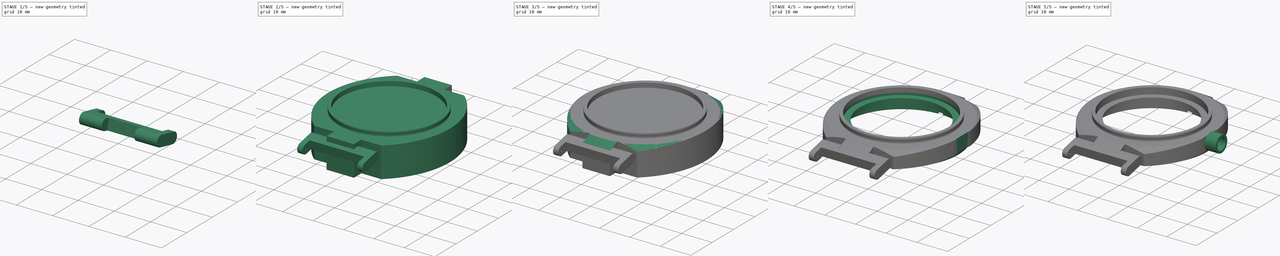
[diagram: build sequence overview — one tinted view per stage of 5, left to right]
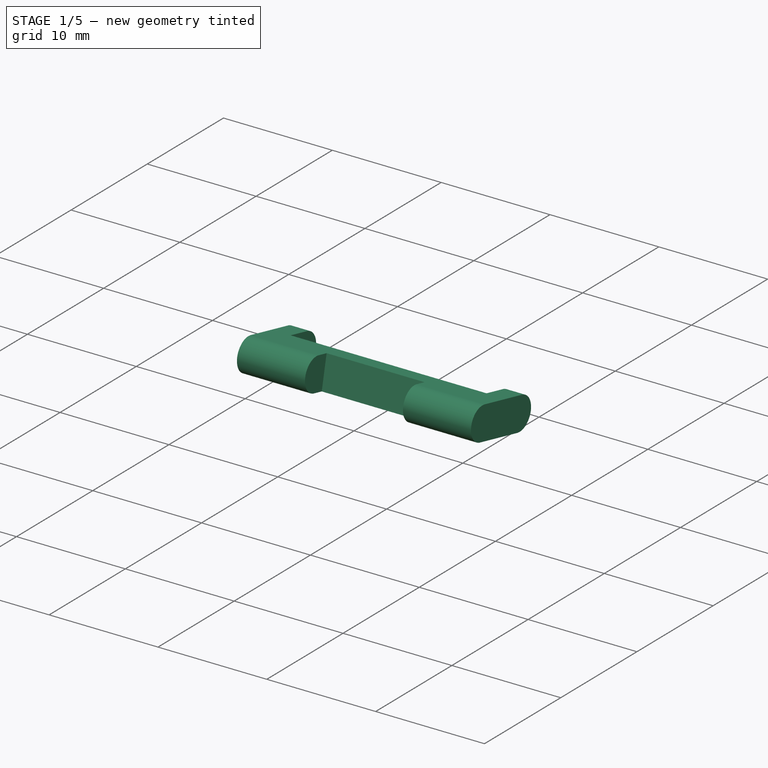
[diagram: stage 1 of 5 — iso view after this stage's code; geometry added in this stage tinted green]
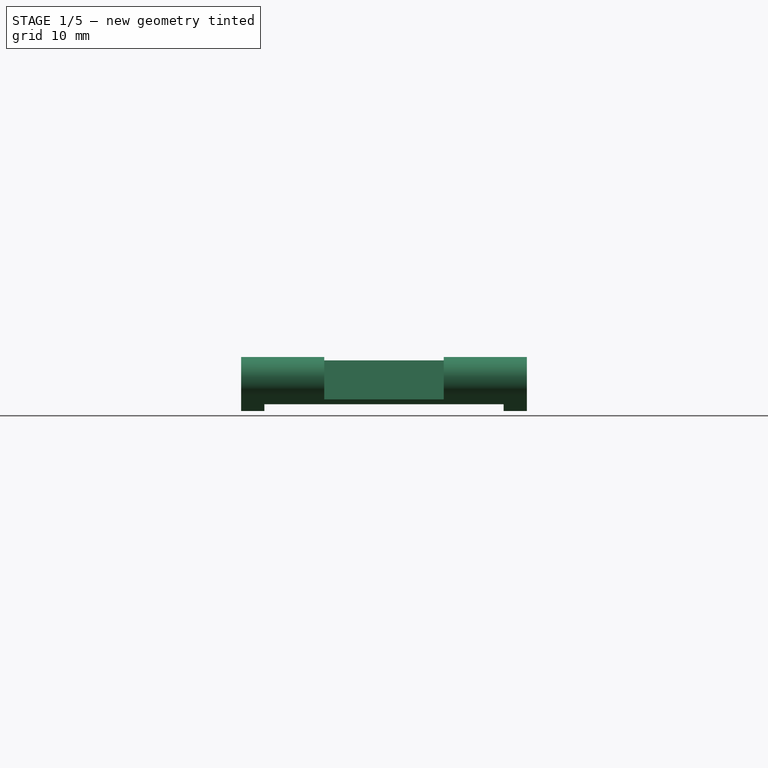
[diagram: stage 1 of 5 — front view after this stage's code; geometry added in this stage tinted green]
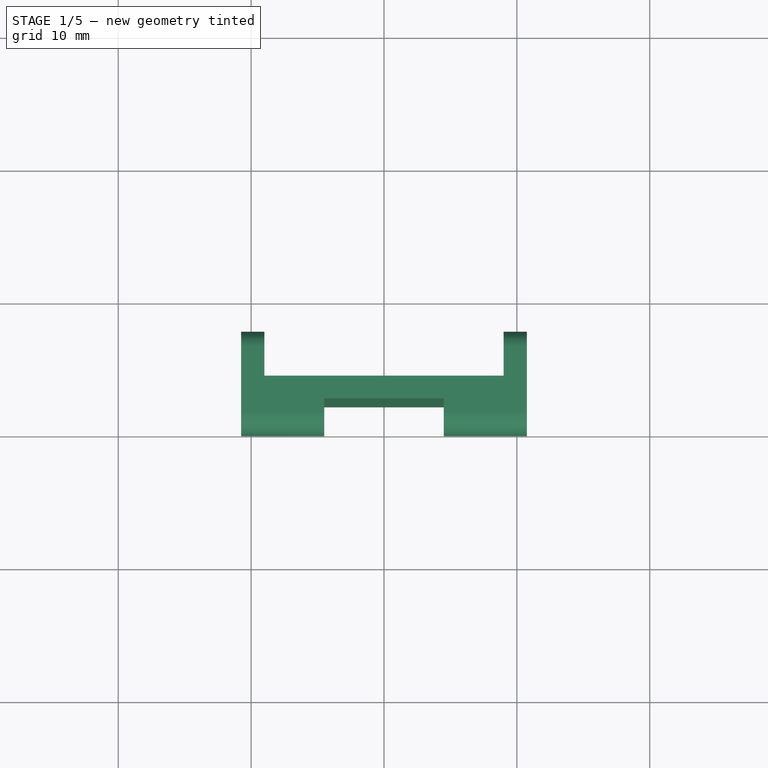
[diagram: stage 1 of 5 — top view after this stage's code; geometry added in this stage tinted green]
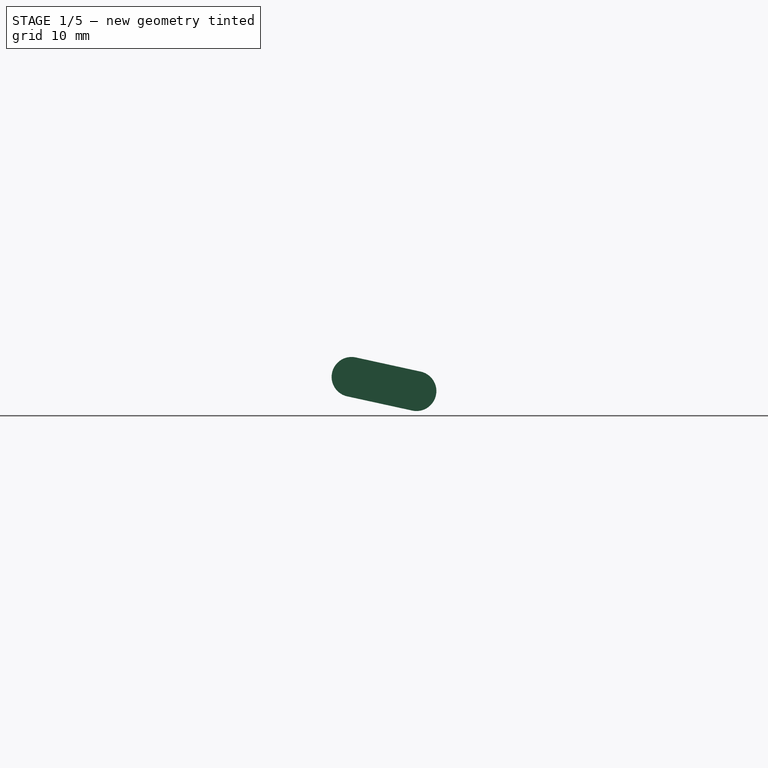
[diagram: stage 1 of 5 — right view after this stage's code; geometry added in this stage tinted green]
FCSTD DOCUMENT  (FreeCAD 0.19R20415 (Git))
Label: Vostok_Amphibia_Case_960
License: All rights reserved
LicenseURL: http://en.wikipedia.org/wiki/All_rights_reserved
objects: Sketcher::SketchObject×16, PartDesign::Pocket×6, PartDesign::Plane×3, PartDesign::Pad×3, PartDesign::Groove×2, Image::ImagePlane×2, PartDesign::Body×2, PartDesign::Point×1, PartDesign::Revolution×1, PartDesign::SubtractivePipe×1, PartDesign::Mirrored×1, Part::FeaturePython×1
note: 50 computed .brp shape members not serialized (recipe doc carries the construction recipe); baked Part::Feature solids carry a one-line shape summary decoded from their .brp

FEATURE [PartDesign::Body] Body  label="960_Case"
  Group = -> [Sketch,Pad,Sketch001,Revolution,DatumPlane,DatumPlane001,DatumPoint,Sketch003,Sketch005,Sketch009,Sketch011,Sketch013,Sketch014,Sketch020,Sketch021,SubtractivePipe,Mirrored,Pocket,Groove,Pocket001,DatumPlane002,Sketch028,Sketch029,Sketch032,Pocket002,Pad001,Groove001,Pocket003]
  Origin = -> Origin
  Tip = -> Pocket003
FEATURE [Image::ImagePlane] ImagePlane001
  Placement = pos=(6.7e-15,27,0) rot=(0,0,1;3.14159rad)
  XSize = 32.1963
  YSize = 32.1963
FEATURE [Sketcher::SketchObject] Sketch033
  MapMode = 5
  Placement = pos=(0,0,0) rot=(0.57735,0.57735,0.57735;2.0944rad)
  Support = -> [YZ_Plane001]
  sketch-geometry (7):
    g0: LineSegment StartX=21.8203 StartY=8.71541 StartZ=0 EndX=26.705 EndY=7.6478 EndZ=0
    g1: LineSegment StartX=26.0644 StartY=4.71698 StartZ=0 EndX=21.1797 EndY=5.78459 EndZ=0
    g2: ArcOfCircle CenterX=21.5 CenterY=7.25 CenterZ=0 NormalX=0 NormalY=0 NormalZ=1 AngleXU=0 Radius=1.5 StartAngle=1.35562 EndAngle=4.49721
    g3: ArcOfCircle CenterX=26.3847 CenterY=6.18239 CenterZ=0 NormalX=0 NormalY=0 NormalZ=1 AngleXU=0 Radius=1.5 StartAngle=4.49721 EndAngle=7.6388
    g4: GeomPoint X=20.0346 Y=7.57028 Z=0
    g5: GeomPoint X=27.8501 Y=5.86211 Z=0
    g6: LineSegment [constr] StartX=20.0346 StartY=7.57028 StartZ=0 EndX=27.8501 EndY=5.86211 EndZ=0
  constraints (17):
    c: Symmetric(g1,g0,g2)
    c: Symmetric(g1,g0,g3)
    c: Tangent(g3,g0) = 1.5708
    c: Tangent(g2,g0) = 1.5708
    c: Equal(g3,g2)
    c: Coincident(g2,g1)
    c: Coincident(g3,g1)
    c: Distance(g0,g1) = 3
    c: DistanceX(g2) = 21.5
    c: DistanceY(g2) = 7.25
    c: PointOnObject(g4,g2)
    c: PointOnObject(g5,g3)
    c: Coincident(g6,g4)
    c: Coincident(g6,g5)
    c: PointOnObject(g3,g6)
    c: PointOnObject(g2,g6)
    c: Distance(g6) = 8
FEATURE [PartDesign::Pad] Pad002
  Length = 21.5
  Length2 = 100
  Midplane = true
  Placement = pos=(0,0,0) rot=(0.57735,0.57735,0.57735;2.0944rad)
  Profile = -> Sketch033
  Type = 0
FEATURE [Sketcher::SketchObject] Sketch034
  MapMode = 5
  Placement = pos=(-3.8e-15,2.81284,12.8697) rot=(-0.106768,-0.106768,-0.988535;1.58233rad)
  Support = -> [Pad002]
  sketch-geometry (8):
    g0: LineSegment StartX=-20.5 StartY=4.5 StartZ=0 EndX=0 EndY=4.5 EndZ=0
    g1: LineSegment StartX=0 StartY=4.5 StartZ=0 EndX=0 EndY=-4.5 EndZ=0
    g2: LineSegment StartX=0 StartY=-4.5 StartZ=0 EndX=-20.5 EndY=-4.5 EndZ=0
    g3: LineSegment StartX=-20.5 StartY=-4.5 StartZ=0 EndX=-20.5 EndY=4.5 EndZ=0
    g4: LineSegment StartX=-32.25 StartY=9 StartZ=0 EndX=-22.25 EndY=9 EndZ=0
    g5: LineSegment StartX=-22.25 StartY=9 StartZ=0 EndX=-22.25 EndY=-9 EndZ=0
    g6: LineSegment StartX=-22.25 StartY=-9 StartZ=0 EndX=-32.25 EndY=-9 EndZ=0
    g7: LineSegment StartX=-32.25 StartY=-9 StartZ=0 EndX=-32.25 EndY=9 EndZ=0
  constraints (22):
    c: Coincident(g0,g1)
    c: Coincident(g1,g2)
    c: Coincident(g2,g3)
    c: Coincident(g3,g0)
    c: Horizontal(g0)
    c: Horizontal(g2)
    c: Vertical(g1)
    c: Coincident(g4,g5)
    c: Coincident(g5,g6)
    c: Coincident(g6,g7)
    c: Coincident(g7,g4)
    c: Horizontal(g4)
    c: Horizontal(g6)
    c: Vertical(g5)
    c: Symmetric(g4,g6,g-1)
    c: DistanceY(g7,g7) = 18
    c: DistanceY(g2,g0) = 9
    c: Symmetric(g0,g2,g-1)
    c: PointOnObject(g0,g-2)
    c: DistanceX(g4,g4) = 10
    c: DistanceX(g4,g0) = 1.75
    c: DistanceX(g2) = -20.5
FEATURE [PartDesign::Pocket] Pocket004
  BaseFeature = -> Pad002
  Length = 5
  Length2 = 100
  Placement = pos=(0,0,0) rot=(0.57735,0.57735,0.57735;2.0944rad)
  Profile = -> Sketch034
  Type = 0
FEATURE [Sketcher::SketchObject] Sketch035
  ExternalGeometry = -> [Pocket004]
  MapMode = 5
  Placement = pos=(0,0,0) rot=(0.57735,0.57735,0.57735;2.0944rad)
  Support = -> [YZ_Plane001]
  sketch-geometry (1):
    g0: Circle CenterX=26.3847 CenterY=6.18239 CenterZ=0 NormalX=0 NormalY=0 NormalZ=1 AngleXU=0 Radius=0.25
  constraints (2):
    c: Radius(g0) = 0.25
    c: Coincident(g0,g-3)
FEATURE [PartDesign::Pocket] Pocket005
  BaseFeature = -> Pocket004
  Length = 18.5
  Length2 = 100
  Midplane = true
  Placement = pos=(0,0,0) rot=(0.57735,0.57735,0.57735;2.0944rad)
  Profile = -> Sketch035
  Type = 0
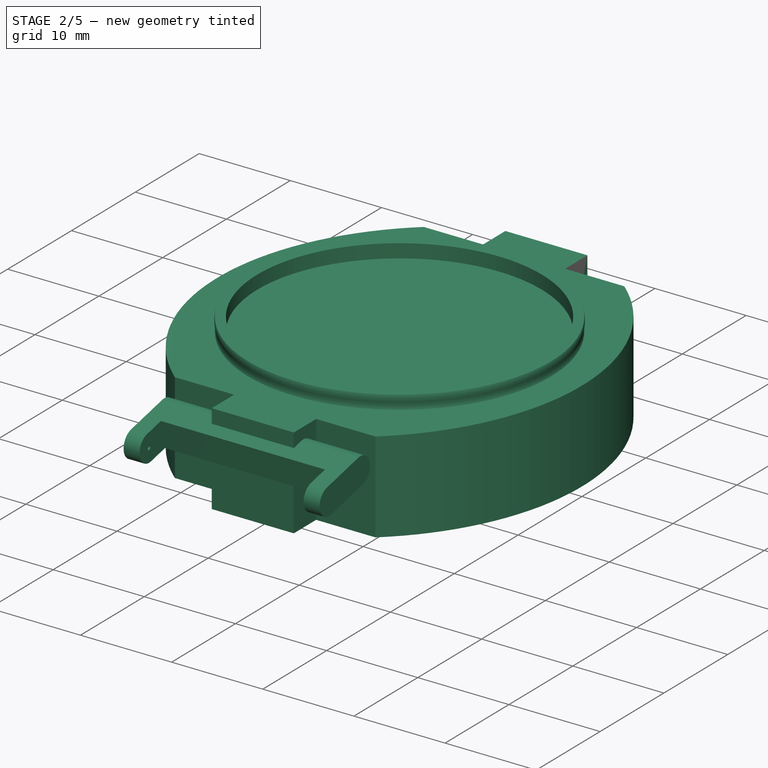
[diagram: stage 2 of 5 — iso view after this stage's code; geometry added in this stage tinted green]
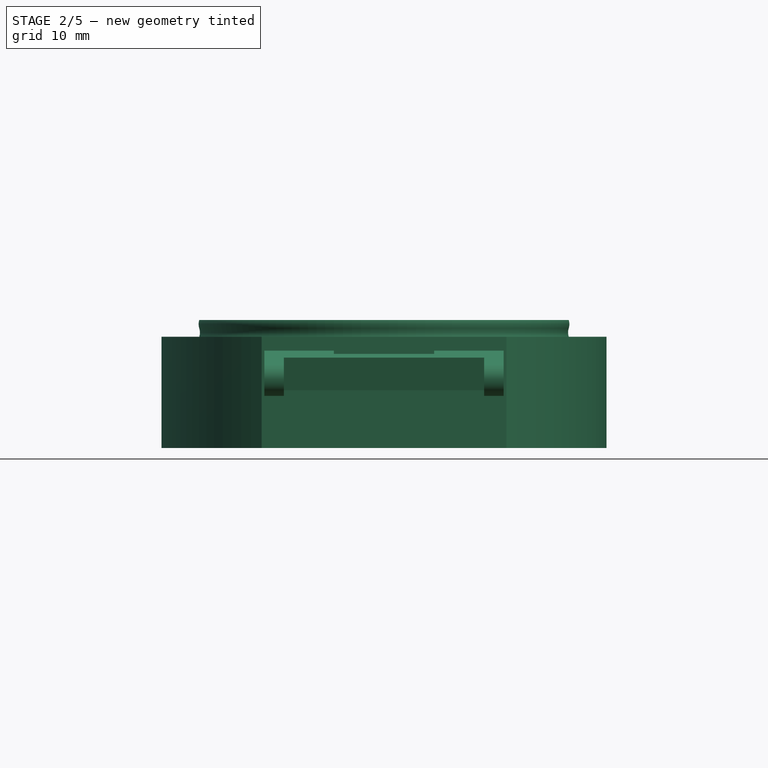
[diagram: stage 2 of 5 — front view after this stage's code; geometry added in this stage tinted green]
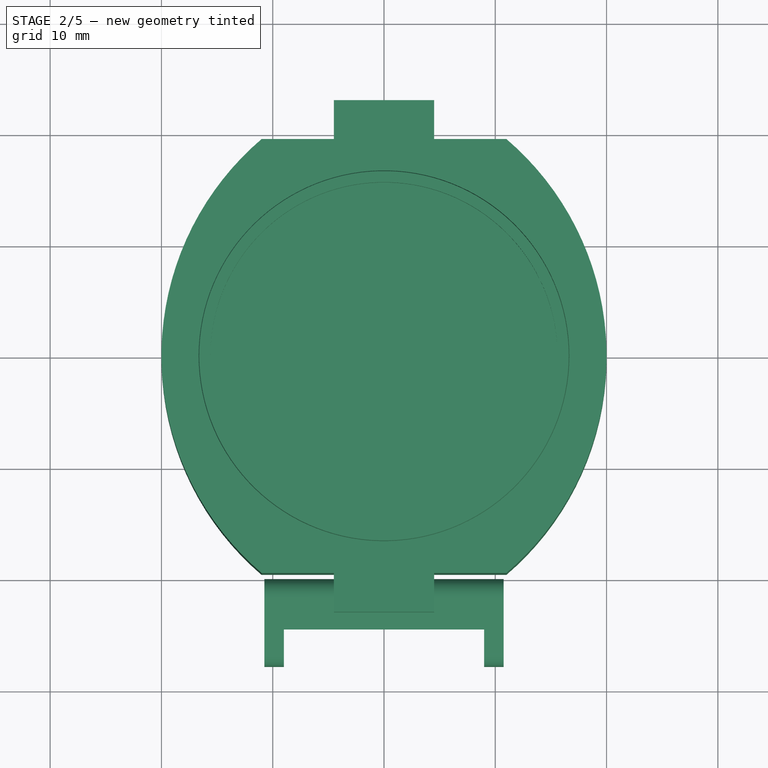
[diagram: stage 2 of 5 — top view after this stage's code; geometry added in this stage tinted green]
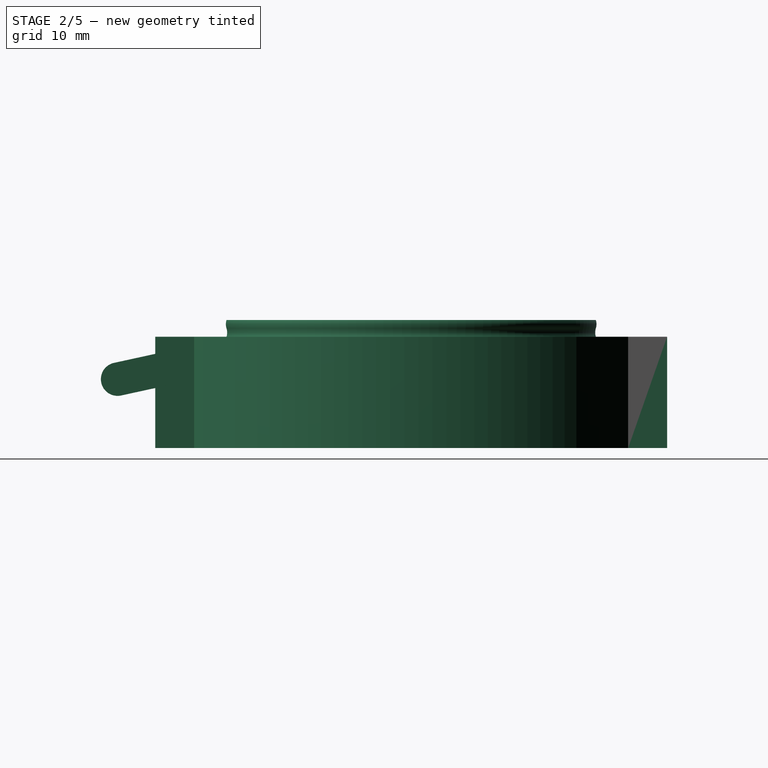
[diagram: stage 2 of 5 — right view after this stage's code; geometry added in this stage tinted green]
FEATURE [PartDesign::Point] DatumPoint
  AttacherType = Attacher::AttachEnginePoint
FEATURE [Sketcher::SketchObject] Sketch009
  MapMode = 5
  Placement = pos=(0,0,10) rot=(0,0,1;0rad)
  sketch-geometry (7):
    g0: ArcOfEllipse CenterX=0 CenterY=0 CenterZ=0 NormalX=0 NormalY=0 NormalZ=1 MajorRadius=23.015 MinorRadius=22 AngleXU=1.5708 StartAngle=0 EndAngle=3.14159
    g1: LineSegment [constr] StartX=0 StartY=23.015 StartZ=0 EndX=0 EndY=-23.015 EndZ=0
    g2: LineSegment [constr] StartX=-22 StartY=3.8e-15 StartZ=0 EndX=22 EndY=-3.8e-15 EndZ=0
    g3: GeomPoint X=-1.23e-14 Y=6.75945 Z=0
    g4: GeomPoint X=1.23e-14 Y=-6.75945 Z=0
    g5: LineSegment StartX=-10 StartY=20.5 StartZ=0 EndX=0 EndY=20.5 EndZ=0
    g6: LineSegment StartX=-7.1e-15 StartY=-20.5 StartZ=0 EndX=-10 EndY=-20.5 EndZ=0
  constraints (14):
    c: InternalAlignment(g1-g4 -> g0) x4
    c: PointOnObject(g0,g-1)
    c: Perpendicular(g-1,g1)
    c: DistanceX(g2) = -22
    c: PointOnObject(g1,g-2)
    c: PointOnObject(g0,g-2)
    c: PointOnObject(g0,g-2)
    c: PointOnObject(g5,g-2)
    c: Horizontal(g6)
    c: Symmetric(g6,g5,g-1)
    c: DistanceY(g6) = -20.5
    c: Symmetric(g5,g6,g2)
    c: DistanceX(g5) = -10
    c: PointOnObject(g6,g0)
FEATURE [PartDesign::Plane] DatumPlane
  Length = 60
  MapMode = 5
  Placement = pos=(0,0,0) rot=(0.57735,0.57735,0.57735;2.0944rad)
  ResizeMode = 0
  Support = -> [YZ_Plane]
  Width = 60
FEATURE [Sketcher::SketchObject] Sketch003
  MapMode = 5
  Placement = pos=(0,0,0) rot=(0.57735,0.57735,0.57735;2.0944rad)
  Support = -> [DatumPlane]
  sketch-geometry (6):
    g0: ArcOfCircle CenterX=-19.75 CenterY=9.5 CenterZ=0 NormalX=0 NormalY=0 NormalZ=1 AngleXU=0 Radius=0.5 StartAngle=1.5708 EndAngle=2.0944
    g1: LineSegment StartX=-20 StartY=10 StartZ=0 EndX=-19.75 EndY=10 EndZ=0
    g2: LineSegment StartX=-20 StartY=9.93301 StartZ=0 EndX=-29.875 EndY=4.23168 EndZ=0
    g3: ArcOfCircle CenterX=-29.75 CenterY=4.01517 CenterZ=0 NormalX=0 NormalY=0 NormalZ=1 AngleXU=0 Radius=0.25 StartAngle=2.0944 EndAngle=3.14159
    g4: LineSegment StartX=-20 StartY=10 StartZ=0 EndX=-30 EndY=10 EndZ=0
    g5: LineSegment StartX=-30 StartY=10 StartZ=0 EndX=-30 EndY=4.01517 EndZ=0
  constraints (16):
    c: DistanceY(g4) = 10
    c: DistanceX(g4,g4) = 10
    c: Radius(g3) = 0.25
    c: Angle(g4,g2) = 0.523599
    c: Radius(g0) = 0.5
    c: DistanceX(g1) = -20
    c: Horizontal(g1)
    c: Tangent(g0,g1) = 1.5708
    c: Horizontal(g4)
    c: Coincident(g1,g4)
    c: Tangent(g0,g2) = -1.5708
    c: Vertical(g0,g1)
    c: Coincident(g5,g4)
    c: Vertical(g5)
    c: Tangent(g3,g2) = -1.5708
    c: Tangent(g3,g5) = -1.5708
FEATURE [Sketcher::SketchObject] Sketch011
  MapMode = 5
  Placement = pos=(0,0,0) rot=(0.57735,0.57735,0.57735;2.0944rad)
  Support = -> [DatumPlane]
  sketch-geometry (6):
    g0: LineSegment StartX=20 StartY=9.93301 StartZ=0 EndX=29.875 EndY=4.23168 EndZ=0
    g1: ArcOfCircle CenterX=29.75 CenterY=4.01517 CenterZ=0 NormalX=0 NormalY=0 NormalZ=1 AngleXU=0 Radius=0.25 StartAngle=4e-16 EndAngle=1.0472
    g2: ArcOfCircle CenterX=19.75 CenterY=9.5 CenterZ=0 NormalX=0 NormalY=0 NormalZ=1 AngleXU=0 Radius=0.5 StartAngle=1.0472 EndAngle=1.5708
    g3: LineSegment StartX=20 StartY=10 StartZ=0 EndX=19.75 EndY=10 EndZ=0
    g4: LineSegment StartX=20 StartY=10 StartZ=0 EndX=30 EndY=10 EndZ=0
    g5: LineSegment StartX=30 StartY=10 StartZ=0 EndX=30 EndY=4.01517 EndZ=0
  constraints (16):
    c: Tangent(g0,g1) = 1.5708
    c: Tangent(g0,g2) = 1.5708
    c: Horizontal(g3)
    c: Tangent(g2,g3) = -1.5708
    c: Radius(g1) = 0.25
    c: Vertical(g0,g3)
    c: Radius(g2) = 0.5
    c: Coincident(g3,g4)
    c: Horizontal(g4)
    c: Coincident(g4,g5)
    c: Vertical(g5)
    c: Tangent(g5,g1) = 1.5708
    c: DistanceX(g4,g4) = 10
    c: DistanceY(g4) = 10
    c: Angle(g0,g4) = 0.523599
    c: DistanceX(g3) = 20
FEATURE [Sketcher::SketchObject] Sketch
  MapMode = 5
  Support = -> [XY_Plane]
  sketch-geometry (14):
    g0: LineSegment StartX=-11 StartY=19.5 StartZ=0 EndX=-4.5 EndY=19.5 EndZ=0
    g1: LineSegment StartX=-4.5 StartY=19.5 StartZ=0 EndX=-4.5 EndY=23 EndZ=0
    g2: LineSegment StartX=-4.5 StartY=23 StartZ=0 EndX=4.5 EndY=23 EndZ=0
    g3: LineSegment StartX=4.5 StartY=23 StartZ=0 EndX=4.5 EndY=19.5 EndZ=0
    g4: LineSegment StartX=4.5 StartY=19.5 StartZ=0 EndX=11 EndY=19.5 EndZ=0
    g5: LineSegment StartX=11 StartY=-19.5 StartZ=0 EndX=4.5 EndY=-19.5 EndZ=0
    g6: LineSegment StartX=4.5 StartY=-19.5 StartZ=0 EndX=4.5 EndY=-23 EndZ=0
    g7: LineSegment StartX=4.5 StartY=-23 StartZ=0 EndX=-4.5 EndY=-23 EndZ=0
    g8: LineSegment StartX=-4.5 StartY=-23 StartZ=0 EndX=-4.5 EndY=-19.5 EndZ=0
    g9: LineSegment StartX=-4.5 StartY=-19.5 StartZ=0 EndX=-11 EndY=-19.5 EndZ=0
    g10: ArcOfCircle CenterX=5.625 CenterY=-3.1e-15 CenterZ=0 NormalX=0 NormalY=0 NormalZ=1 AngleXU=0 Radius=25.625 StartAngle=2.27678 EndAngle=4.00641
    g11: ArcOfCircle CenterX=-5.625 CenterY=-2.1e-15 CenterZ=0 NormalX=0 NormalY=0 NormalZ=1 AngleXU=0 Radius=25.625 StartAngle=5.41837 EndAngle=7.148
    g12: GeomPoint X=-20 Y=0 Z=0
    g13: GeomPoint X=20 Y=0 Z=0
  constraints (32):
    c: Horizontal(g0)
    c: Coincident(g0,g1)
    c: Vertical(g1)
    c: Coincident(g1,g2)
    c: Coincident(g2,g3)
    c: Coincident(g3,g4)
    c: Coincident(g5,g6)
    c: Coincident(g6,g7)
    c: Coincident(g7,g8)
    c: Coincident(g8,g9)
    c: Symmetric(g8,g5,g-2)
    c: Symmetric(g6,g7,g-2)
    c: Symmetric(g5,g9,g-2)
    c: Symmetric(g9,g0,g-1)
    c: Symmetric(g0,g3,g-2)
    c: Symmetric(g1,g2,g-2)
    c: Symmetric(g4,g5,g-1)
    c: DistanceX(g2,g2) = 9
    c: DistanceX(g0,g4) = 22
    c: DistanceY(g5,g4) = 39
    c: Symmetric(g8,g0,g-1)
    c: Symmetric(g6,g2,g-1)
    c: DistanceY(g3,g3) = 3.5
    c: Coincident(g10,g0)
    c: Coincident(g10,g9)
    c: Coincident(g11,g4)
    c: Coincident(g11,g5)
    c: PointOnObject(g12,g10)
    c: PointOnObject(g13,g11)
    c: PointOnObject(g13,g-1)
    c: Symmetric(g12,g13,g-1)
    c: DistanceX(g12,g13) = 40
FEATURE [PartDesign::Pad] Pad
  AllowMultiFace = false
  Length = 10
  Length2 = 100
  Profile = -> Sketch
  Type = 0
FEATURE [Sketcher::SketchObject] Sketch001
  MapMode = 5
  Placement = pos=(0,0,0) rot=(1,0,0;1.5708rad)
  Support = -> [XZ_Plane]
  sketch-geometry (5):
    g0: LineSegment StartX=15.6 StartY=10 StartZ=0 EndX=15.6 EndY=11.5 EndZ=0
    g1: LineSegment StartX=15.6 StartY=11.5 StartZ=0 EndX=16.6 EndY=11.5 EndZ=0
    g2: ArcOfCircle CenterX=17.7924 CenterY=10.375 CenterZ=0 NormalX=0 NormalY=0 NormalZ=1 AngleXU=0 Radius=1.25 StartAngle=2.8369 EndAngle=3.44629
    g3: LineSegment StartX=15.6 StartY=10 StartZ=0 EndX=16.6 EndY=10 EndZ=0
    g4: ArcOfCircle CenterX=15.4076 CenterY=11.125 CenterZ=0 NormalX=0 NormalY=0 NormalZ=1 AngleXU=0 Radius=1.25 StartAngle=5.97849 EndAngle=6.58788
  constraints (15):
    c: Vertical(g0)
    c: Coincident(g0,g1)
    c: Horizontal(g1)
    c: Coincident(g0,g3)
    c: Horizontal(g3)
    c: Coincident(g2,g3)
    c: Coincident(g4,g1)
    c: DistanceX(g1,g1) = 1
    c: Tangent(g4,g2) = 1.5708
    c: Vertical(g1,g2)
    c: DistanceY(g0,g0) = 1.5
    c: Symmetric(g1,g2,g2)
    c: Radius(g4) = 1.25
    c: DistanceY(g2) = 10
    c: DistanceX(g0) = 15.6
FEATURE [PartDesign::Revolution] Revolution
  AllowMultiFace = false
  Angle = 360
  Axis = (0,-2e-16,1)
  Base = (0,0,0)
  BaseFeature = -> Pad
  Profile = -> Sketch001
  ReferenceAxis = -> Sketch001 [V_Axis]
  Reversed = true
FEATURE [PartDesign::Body] Body001  label="Endlinks"
  Group = -> [Sketch033,Pad002,Sketch034,Pocket004,Sketch035,Pocket005]
  Origin = -> Origin001
  Tip = -> Pocket005
FEATURE [Part::FeaturePython] Clone  label="Endlinks001"  # Draft clone (typed FeaturePython)
  AttacherType = Attacher::AttachEngine3D
  Fuse = false
  Objects = -> [Body001]
  Placement = pos=(0,0,0) rot=(0,0,1;3.14159rad)
  Scale = (1,1,1)
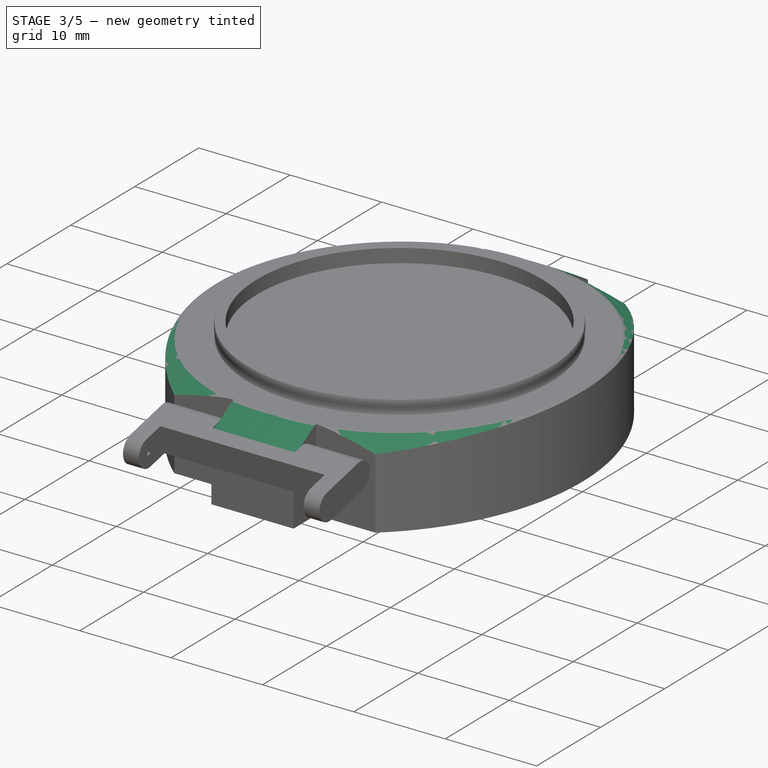
[diagram: stage 3 of 5 — iso view after this stage's code; geometry added in this stage tinted green]
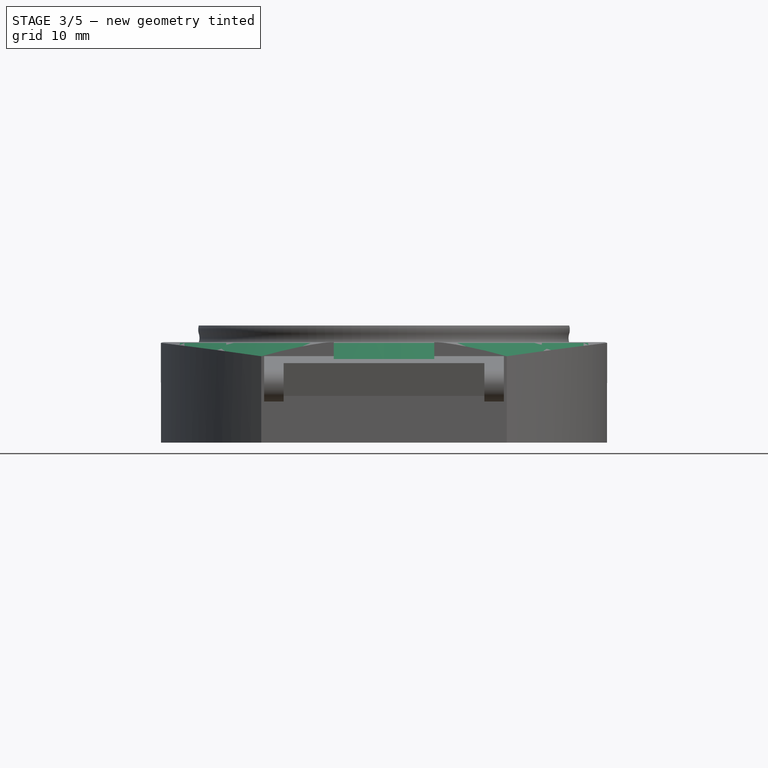
[diagram: stage 3 of 5 — front view after this stage's code; geometry added in this stage tinted green]
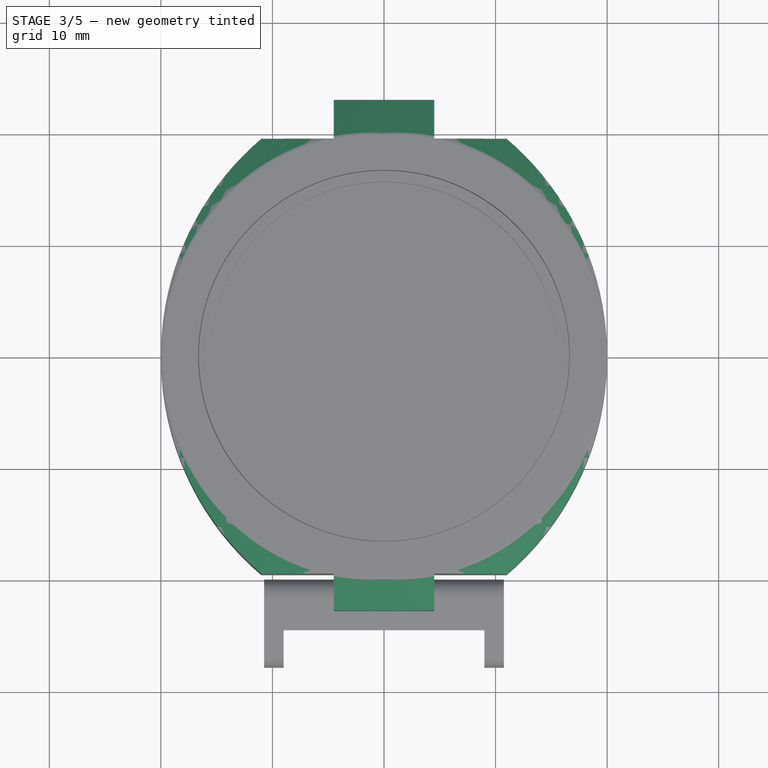
[diagram: stage 3 of 5 — top view after this stage's code; geometry added in this stage tinted green]
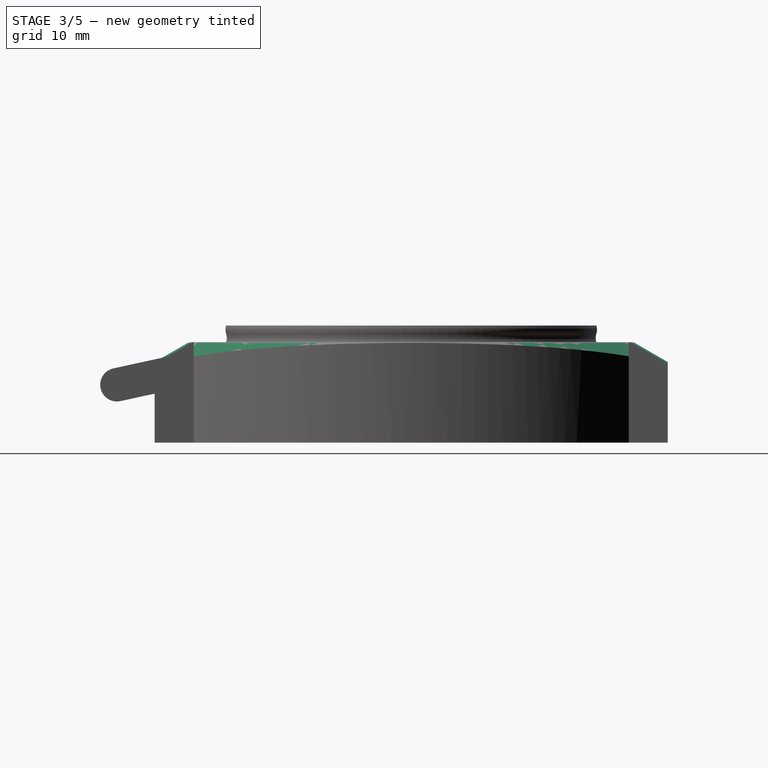
[diagram: stage 3 of 5 — right view after this stage's code; geometry added in this stage tinted green]
FEATURE [PartDesign::Plane] DatumPlane001
  Length = 60
  MapMode = 5
  Placement = pos=(0,0,0) rot=(1,0,0;1.5708rad)
  ResizeMode = 0
  Support = -> [XZ_Plane]
  Width = 60
FEATURE [Sketcher::SketchObject] Sketch005
  MapMode = 5
  Placement = pos=(0,0,0) rot=(1,0,0;1.5708rad)
  Support = -> [DatumPlane001]
  sketch-geometry (6):
    g0: LineSegment StartX=-25 StartY=10 StartZ=0 EndX=-20 EndY=10 EndZ=0
    g1: LineSegment StartX=-25 StartY=10 StartZ=0 EndX=-25 EndY=6.90192 EndZ=0
    g2: ArcOfCircle CenterX=-19.75 CenterY=9.5 CenterZ=0 NormalX=0 NormalY=0 NormalZ=1 AngleXU=0 Radius=0.5 StartAngle=1.5708 EndAngle=2.0944
    g3: LineSegment StartX=-20 StartY=10 StartZ=0 EndX=-19.75 EndY=10 EndZ=0
    g4: LineSegment StartX=-20 StartY=9.93301 StartZ=0 EndX=-24.875 EndY=7.11843 EndZ=0
    g5: ArcOfCircle CenterX=-24.75 CenterY=6.90192 CenterZ=0 NormalX=0 NormalY=0 NormalZ=1 AngleXU=0 Radius=0.25 StartAngle=2.0944 EndAngle=3.14159
  constraints (17):
    c: Horizontal(g0)
    c: DistanceY(g0) = 10
    c: DistanceX(g0) = -20
    c: DistanceX(g0,g0) = 5
    c: Coincident(g1,g0)
    c: Vertical(g1)
    c: Coincident(g3,g0)
    c: Coincident(g3,g2)
    c: Tangent(g3,g2)
    c: Horizontal(g3)
    c: Vertical(g2,g0)
    c: Radius(g2) = 0.5
    c: Tangent(g2,g4) = -1.5708
    c: Tangent(g4,g5) = -1.5708
    c: Tangent(g5,g1) = -1.5708
    c: Radius(g5) = 0.25
    c: Angle(g0,g4) = 0.523599
FEATURE [PartDesign::SubtractivePipe] SubtractivePipe
  AllowMultiFace = false
  AuxilleryCurvelinear = true
  AuxillerySpineTangent = false
  BaseFeature = -> Revolution
  Binormal = (0,0,0)
  Mode = 0
  Profile = -> Sketch003
  Sections = -> [Sketch005,Sketch011]
  Spine = -> Sketch009 [Edge1]
  SpineTangent = false
  Transformation = 1
  Transition = 2
FEATURE [PartDesign::Mirrored] Mirrored
  BaseFeature = -> SubtractivePipe
  MirrorPlane = -> YZ_Plane
  Originals = -> [SubtractivePipe]
FEATURE [Sketcher::SketchObject] Sketch013
  MapMode = 5
  Placement = pos=(0,0,0) rot=(1,0,0;1.5708rad)
  Support = -> [XZ_Plane]
  sketch-geometry (4):
    g0: LineSegment StartX=-29.7309 StartY=0 StartZ=0 EndX=29.7309 EndY=0 EndZ=0
    g1: LineSegment StartX=29.7309 StartY=0 StartZ=0 EndX=29.7309 EndY=1 EndZ=0
    g2: LineSegment StartX=29.7309 StartY=1 StartZ=0 EndX=-29.7309 EndY=1 EndZ=0
    g3: LineSegment StartX=-29.7309 StartY=1 StartZ=0 EndX=-29.7309 EndY=0 EndZ=0
  constraints (10):
    c: Coincident(g0,g1)
    c: Coincident(g1,g2)
    c: Coincident(g2,g3)
    c: Coincident(g3,g0)
    c: Horizontal(g0)
    c: Vertical(g1)
    c: Vertical(g3)
    c: PointOnObject(g0,g-1)
    c: DistanceY(g1,g1) = 1
    c: Symmetric(g1,g2,g-2)
FEATURE [PartDesign::Pocket] Pocket
  AllowMultiFace = false
  BaseFeature = -> Mirrored
  Length = 5
  Length2 = 100
  Midplane = true
  Profile = -> Sketch013
  Type = 1
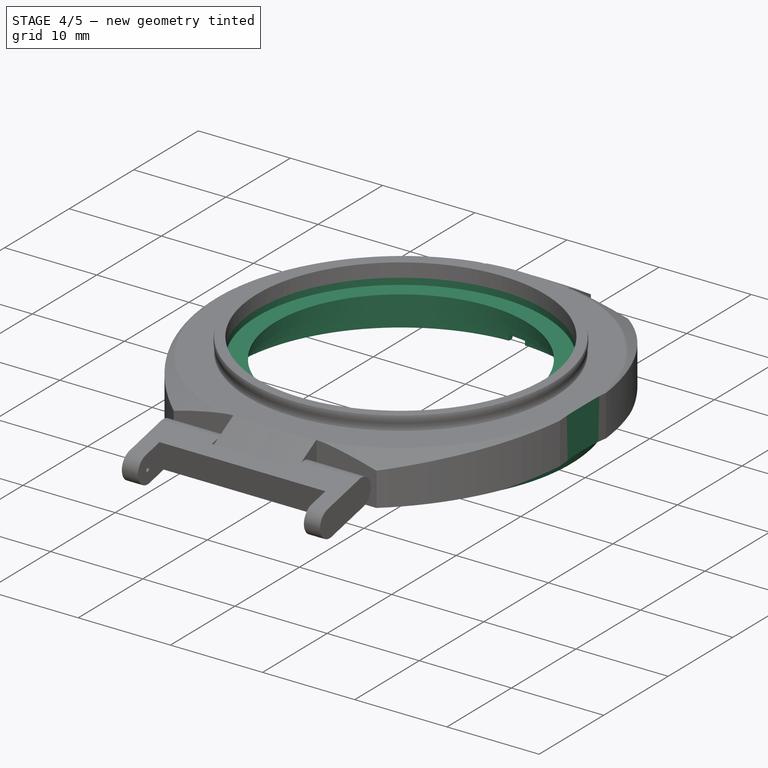
[diagram: stage 4 of 5 — iso view after this stage's code; geometry added in this stage tinted green]
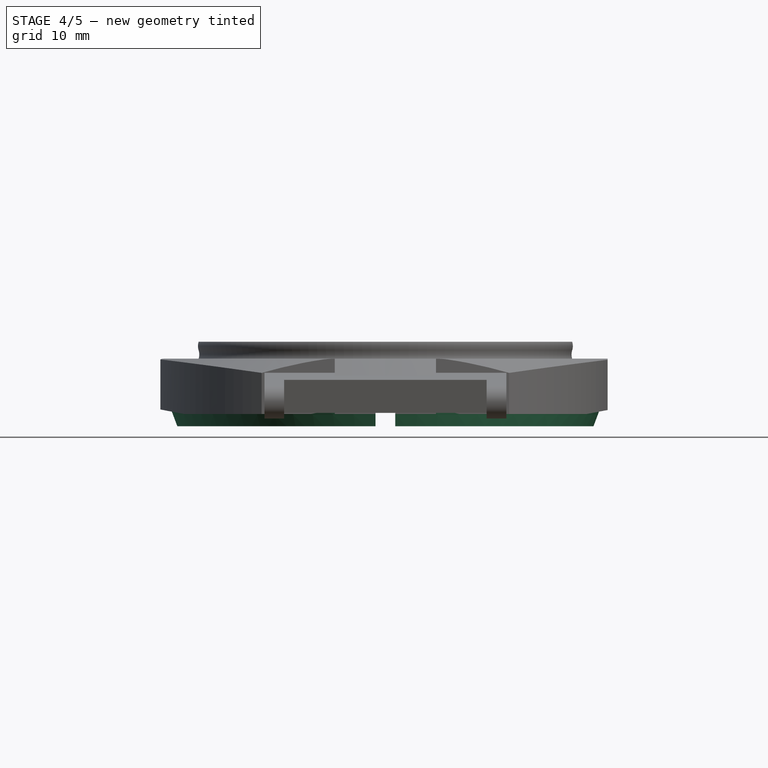
[diagram: stage 4 of 5 — front view after this stage's code; geometry added in this stage tinted green]
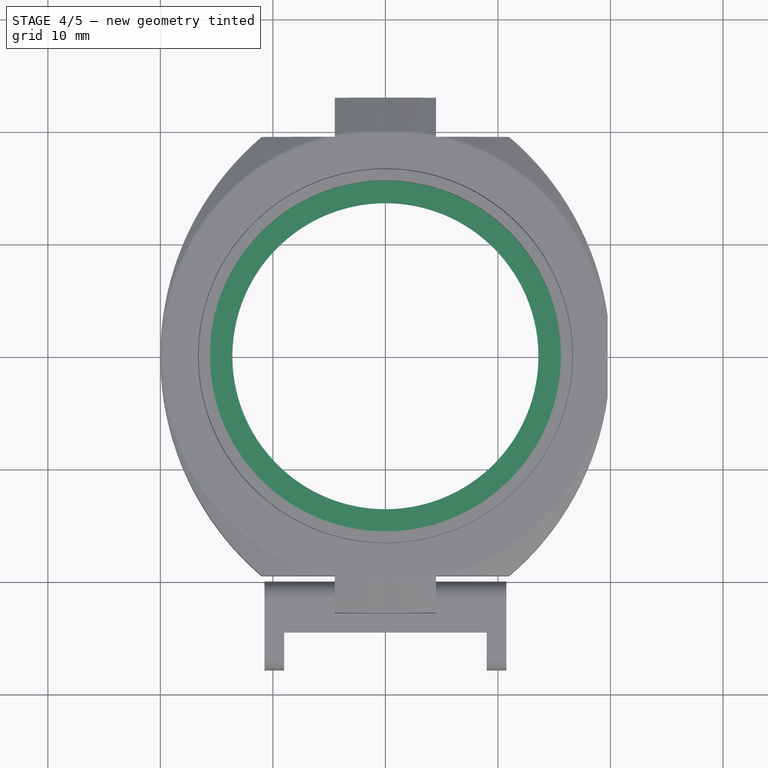
[diagram: stage 4 of 5 — top view after this stage's code; geometry added in this stage tinted green]
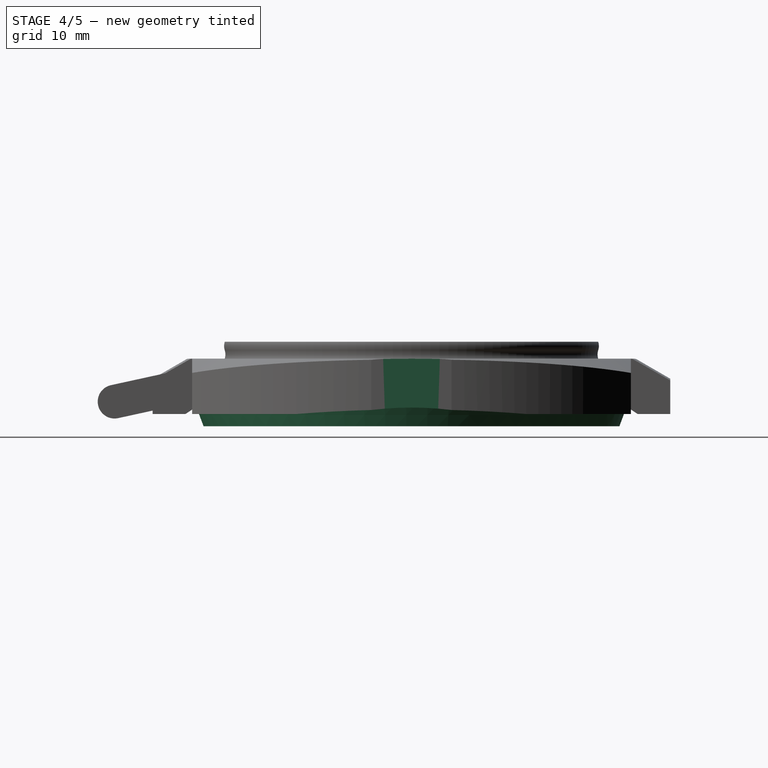
[diagram: stage 4 of 5 — right view after this stage's code; geometry added in this stage tinted green]
FEATURE [Sketcher::SketchObject] Sketch014
  MapMode = 5
  Placement = pos=(0,0,0) rot=(0.57735,0.57735,0.57735;2.0944rad)
  Support = -> [YZ_Plane]
  sketch-geometry (18):
    g0: LineSegment StartX=19.25 StartY=6 StartZ=0 EndX=18.5 EndY=4 EndZ=0
    g1: LineSegment StartX=0 StartY=0 StartZ=0 EndX=0 EndY=19.1 EndZ=0
    g2: LineSegment StartX=18 StartY=6 StartZ=0 EndX=15.5 EndY=6 EndZ=0
    g3: LineSegment StartX=15.5 StartY=6 StartZ=0 EndX=15.5 EndY=7.5 EndZ=0
    g4: LineSegment StartX=15.5 StartY=7.5 StartZ=0 EndX=14.25 EndY=7.5 EndZ=0
    g5: LineSegment StartX=14.25 StartY=7.5 StartZ=0 EndX=14.25 EndY=9.1 EndZ=0
    g6: LineSegment StartX=14.25 StartY=9.1 StartZ=0 EndX=13.6 EndY=9.1 EndZ=0
    g7: LineSegment StartX=15.6 StartY=19.1 StartZ=0 EndX=0 EndY=19.1 EndZ=0
    g8: LineSegment StartX=13.6 StartY=9.1 StartZ=0 EndX=13.6 EndY=9.3 EndZ=0
    g9: LineSegment StartX=13.6 StartY=9.3 StartZ=0 EndX=15.6 EndY=9.3 EndZ=0
    g10: LineSegment StartX=15.6 StartY=9.3 StartZ=0 EndX=15.6 EndY=19.1 EndZ=0
    g11: LineSegment StartX=18 StartY=6 StartZ=0 EndX=18 EndY=4 EndZ=0
    g12: LineSegment StartX=0 StartY=0 StartZ=0 EndX=23 EndY=0 EndZ=0
    g13: LineSegment StartX=18 StartY=4 StartZ=0 EndX=18.5 EndY=4 EndZ=0
    g14: LineSegment StartX=28 StartY=5.08514 StartZ=0 EndX=28 EndY=0 EndZ=0
    g15: LineSegment StartX=23 StartY=0 StartZ=0 EndX=28 EndY=0 EndZ=0
    g16: LineSegment StartX=19.25 StartY=6 StartZ=0 EndX=20.5875 EndY=5.08514 EndZ=0
    g17: LineSegment StartX=20.5875 StartY=5.08514 StartZ=0 EndX=28 EndY=5.08514 EndZ=0
  constraints (49):
    c: DistanceX(g11) = 18
    c: Vertical(g1)
    c: Horizontal(g2)
    c: Coincident(g2,g3)
    c: Vertical(g3)
    c: Coincident(g3,g4)
    c: Horizontal(g4)
    c: Coincident(g4,g5)
    c: Vertical(g5)
    c: DistanceY(g3,g3) = 1.5
    c: Coincident(g5,g6)
    c: Horizontal(g6)
    c: Horizontal(g7)
    c: DistanceY(g6,g7) = 10
    c: Coincident(g1,g7)
    c: DistanceX(g4) = 14.25
    c: Coincident(g6,g8)
    c: Vertical(g8)
    c: Coincident(g8,g9)
    c: Horizontal(g9)
    c: Coincident(g7,g10)
    c: DistanceY(g6,g8) = 0.2
    c: DistanceX(g2,g2) = 2.5
    c: DistanceY(g11,g9) = 5.3
    c: DistanceX(g7) = 15.6
    c: Vertical(g10)
    c: DistanceX(g9,g9) = 2
    c: Coincident(g11,g2)
    c: Vertical(g11)
    c: DistanceX(g0) = 19.25
    c: DistanceX(g12) = 23
    c: DistanceX(g0) = 18.5
    c: Horizontal(g2,g0)
    c: DistanceY(g9) = 9.3
    c: Coincident(g-1,g1)
    c: Coincident(g1,g12)
    c: PointOnObject(g12,g-1)
    c: DistanceY(g11,g11) = 2
    c: Coincident(g11,g13)
    c: Horizontal(g13)
    c: Coincident(g0,g13)
    c: PointOnObject(g14,g-1)
    c: Vertical(g14)
    c: Coincident(g15,g14)
    c: DistanceX(g14) = 28
    c: Coincident(g0,g16)
    c: Coincident(g16,g17)
    c: Horizontal(g17)
    c: Coincident(g17,g14)
FEATURE [PartDesign::Groove] Groove
  AllowMultiFace = false
  Angle = 360
  Axis = (-2e-16,3e-16,1)
  Base = (0,0,0)
  BaseFeature = -> Pocket
  Profile = -> Sketch014
  ReferenceAxis = -> Sketch014 [V_Axis]
FEATURE [Sketcher::SketchObject] Sketch020
  MapMode = 5
  Placement = pos=(0,0,0) rot=(1,0,0;1.5708rad)
  Support = -> [XZ_Plane]
  sketch-geometry (4):
    g0: LineSegment StartX=-0.875 StartY=5.75 StartZ=0 EndX=0.875 EndY=5.75 EndZ=0
    g1: LineSegment StartX=0.875 StartY=5.75 StartZ=0 EndX=0.875 EndY=4 EndZ=0
    g2: LineSegment StartX=0.875 StartY=4 StartZ=0 EndX=-0.875 EndY=4 EndZ=0
    g3: LineSegment StartX=-0.875 StartY=4 StartZ=0 EndX=-0.875 EndY=5.75 EndZ=0
  constraints (11):
    c: Coincident(g0,g1)
    c: Coincident(g1,g2)
    c: Coincident(g2,g3)
    c: Coincident(g3,g0)
    c: Horizontal(g2)
    c: Vertical(g1)
    c: Vertical(g3)
    c: Equal(g0,g3)
    c: Symmetric(g0,g0,g-2)
    c: DistanceY(g3,g3) = 1.75
    c: DistanceY(g1) = 4
FEATURE [PartDesign::Pocket] Pocket001
  AllowMultiFace = false
  BaseFeature = -> Groove
  Length = 5
  Length2 = 100
  Midplane = true
  Profile = -> Sketch020
  Type = 1
FEATURE [PartDesign::Plane] DatumPlane002
  AttachmentOffset = pos=(0,0,19.75) rot=(0,0,1;0rad)
  Length = 60
  MapMode = 2
  Placement = pos=(19.75,-4.4e-15,4.4e-15) rot=(0.57735,0.57735,0.57735;2.0944rad)
  ResizeMode = 0
  Support = -> [YZ_Plane]
  Width = 60
FEATURE [Sketcher::SketchObject] Sketch021  label="  "
  MapMode = 2
  Placement = pos=(19.75,-4.4e-15,4.4e-15) rot=(0.57735,0.57735,0.57735;2.0944rad)
  Support = -> [DatumPlane002]
  sketch-geometry (4):
    g0: LineSegment StartX=-4 StartY=20 StartZ=0 EndX=4 EndY=20 EndZ=0
    g1: LineSegment StartX=4 StartY=20 StartZ=0 EndX=4 EndY=0 EndZ=0
    g2: LineSegment StartX=4 StartY=0 StartZ=0 EndX=-4 EndY=0 EndZ=0
    g3: LineSegment StartX=-4 StartY=0 StartZ=0 EndX=-4 EndY=20 EndZ=0
  constraints (11):
    c: Coincident(g0,g1)
    c: Coincident(g1,g2)
    c: Coincident(g2,g3)
    c: Coincident(g3,g0)
    c: Horizontal(g2)
    c: Vertical(g1)
    c: Vertical(g3)
    c: Symmetric(g0,g0,g-2)
    c: DistanceX(g0,g0) = 8
    c: DistanceY(g1,g1) = 20
    c: PointOnObject(g-1,g2)
FEATURE [Sketcher::SketchObject] Sketch028
  MapMode = 5
  Placement = pos=(19.75,-4.4e-15,4.4e-15) rot=(-0.57735,0.57735,0.57735;4.18879rad)
  Support = -> [DatumPlane002]
  sketch-geometry (1):
    g0: Circle CenterX=0 CenterY=7.75 CenterZ=0 NormalX=0 NormalY=0 NormalZ=1 AngleXU=0 Radius=2.75
  constraints (3):
    c: PointOnObject(g0,g-2)
    c: DistanceY(g0) = 7.75
    c: Radius(g0) = 2.75
FEATURE [Sketcher::SketchObject] Sketch029
  MapMode = 5
  Placement = pos=(0,0,0) rot=(1,0,0;1.5708rad)
  Support = -> [XZ_Plane]
  sketch-geometry (6):
    g0: LineSegment StartX=0 StartY=8.5 StartZ=0 EndX=0 EndY=7.75 EndZ=0
    g1: LineSegment StartX=0 StartY=7.75 StartZ=0 EndX=25 EndY=7.75 EndZ=0
    g2: LineSegment StartX=25 StartY=7.75 StartZ=0 EndX=25 EndY=9.75 EndZ=0
    g3: LineSegment StartX=25 StartY=9.75 StartZ=0 EndX=20.75 EndY=9.75 EndZ=0
    g4: LineSegment StartX=20.75 StartY=9.75 StartZ=0 EndX=20.75 EndY=8.5 EndZ=0
    g5: LineSegment StartX=20.75 StartY=8.5 StartZ=0 EndX=0 EndY=8.5 EndZ=0
  constraints (18):
    c: Coincident(g0,g1)
    c: Horizontal(g1)
    c: Coincident(g1,g2)
    c: Vertical(g2)
    c: Coincident(g2,g3)
    c: Horizontal(g3)
    c: Coincident(g3,g4)
    c: Vertical(g4)
    c: Coincident(g4,g5)
    c: Coincident(g5,g0)
    c: PointOnObject(g0,g-2)
    c: Vertical(g0)
    c: Horizontal(g5)
    c: DistanceY(g1) = 7.75
    c: DistanceY(g1,g4) = 0.75
    c: DistanceY(g2,g2) = 2
    c: DistanceX(g2) = 25
    c: DistanceX(g3) = 20.75
FEATURE [Sketcher::SketchObject] Sketch032
  MapMode = 5
  Placement = pos=(0,0,0) rot=(0.57735,0.57735,0.57735;2.0944rad)
  Support = -> [YZ_Plane]
  sketch-geometry (2):
    g0: Circle CenterX=21.25 CenterY=7.25 CenterZ=0 NormalX=0 NormalY=0 NormalZ=1 AngleXU=0 Radius=0.75
    g1: Circle CenterX=-21.25 CenterY=7.25 CenterZ=0 NormalX=0 NormalY=0 NormalZ=1 AngleXU=0 Radius=0.75
  constraints (5):
    c: Equal(g1,g0)
    c: Radius(g0) = 0.75
    c: Symmetric(g0,g1,g-2)
    c: DistanceX(g0) = 21.25
    c: DistanceY(g0) = 7.25
FEATURE [Image::ImagePlane] ImagePlane
  Placement = pos=(-168.7,56.4,0) rot=(0,0,1;0rad)
  XSize = 407.537
  YSize = 257.904
FEATURE [PartDesign::Pocket] Pocket002
  BaseFeature = -> Pocket001
  Length = 5
  Length2 = 100
  Profile = -> Sketch021
  Reversed = true
  Type = 0
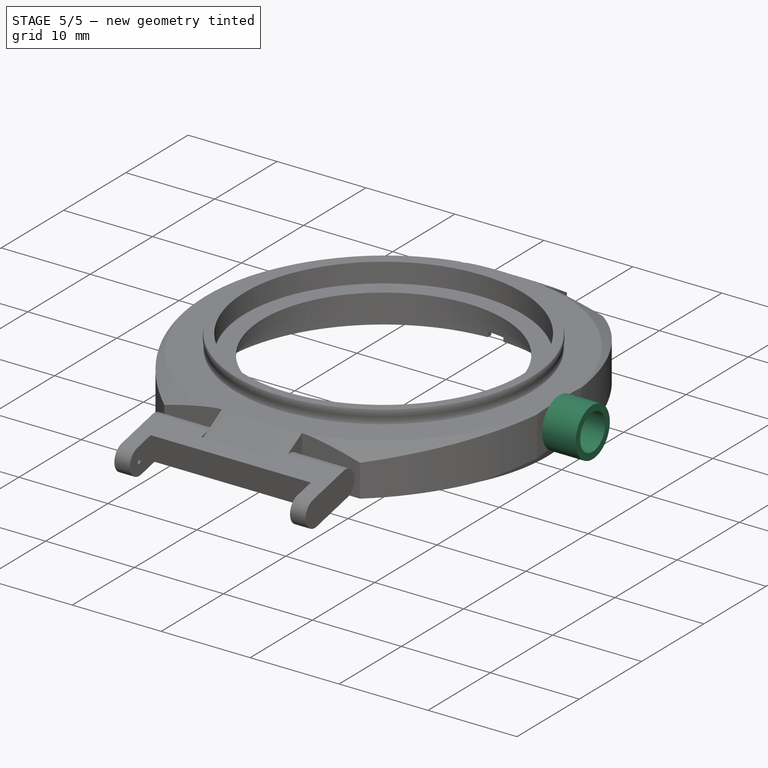
[diagram: stage 5 of 5 — iso view after this stage's code; geometry added in this stage tinted green]
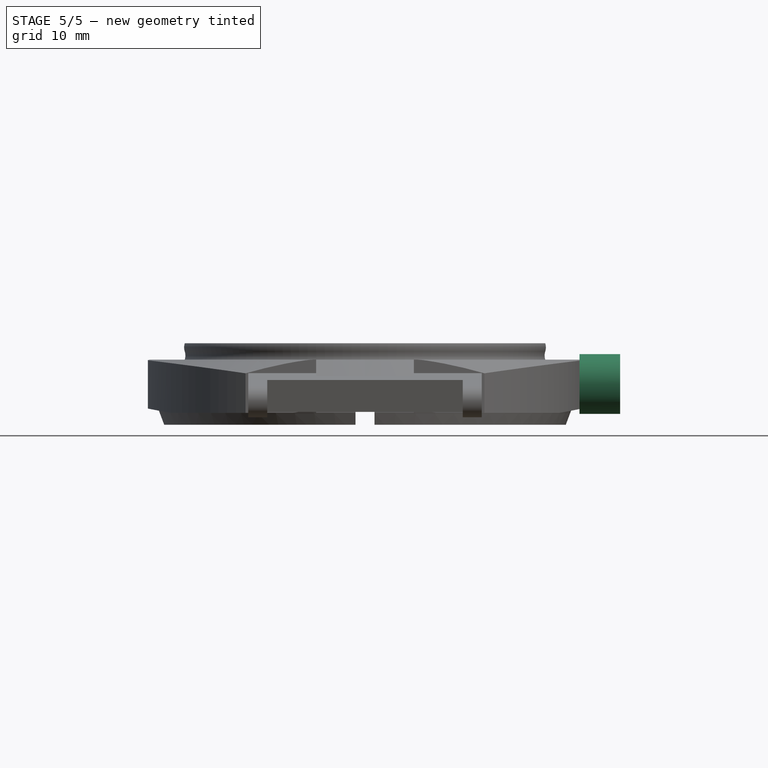
[diagram: stage 5 of 5 — front view after this stage's code; geometry added in this stage tinted green]
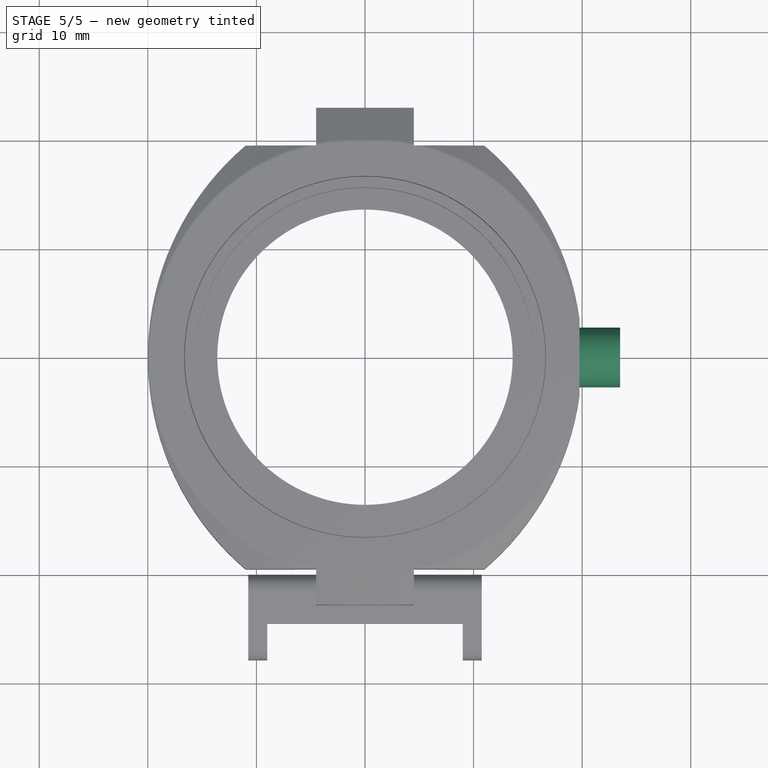
[diagram: stage 5 of 5 — top view after this stage's code; geometry added in this stage tinted green]
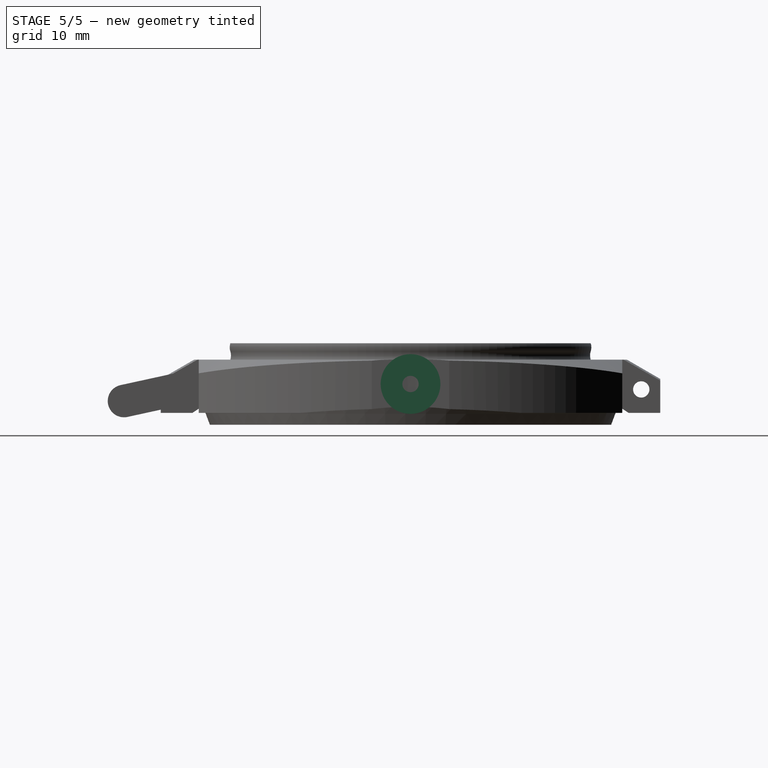
[diagram: stage 5 of 5 — right view after this stage's code; geometry added in this stage tinted green]
FEATURE [PartDesign::Pad] Pad001
  BaseFeature = -> Pocket002
  Length = 3.75
  Length2 = 100
  Profile = -> Sketch028
  Reversed = true
  Type = 0
FEATURE [PartDesign::Groove] Groove001
  Angle = 360
  Axis = (1,0,0)
  Base = (0,-1.7e-15,7.75)
  BaseFeature = -> Pad001
  Profile = -> Sketch029
  ReferenceAxis = -> Sketch029 [Edge2]
FEATURE [PartDesign::Pocket] Pocket003
  BaseFeature = -> Groove001
  Length = 5
  Length2 = 100
  Midplane = true
  Profile = -> Sketch032
  Type = 1
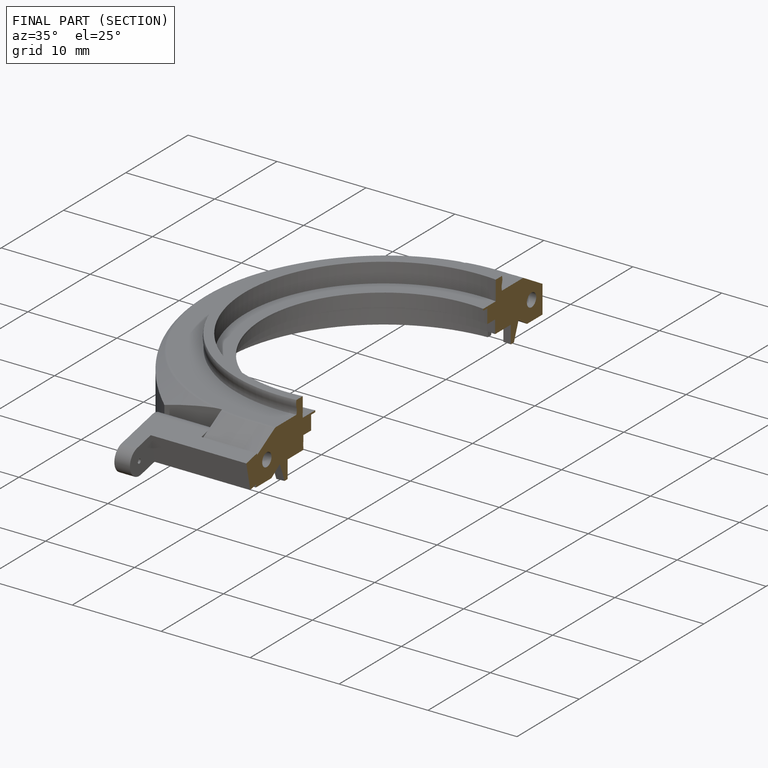
[diagram: finished part — half-section view (interior)]
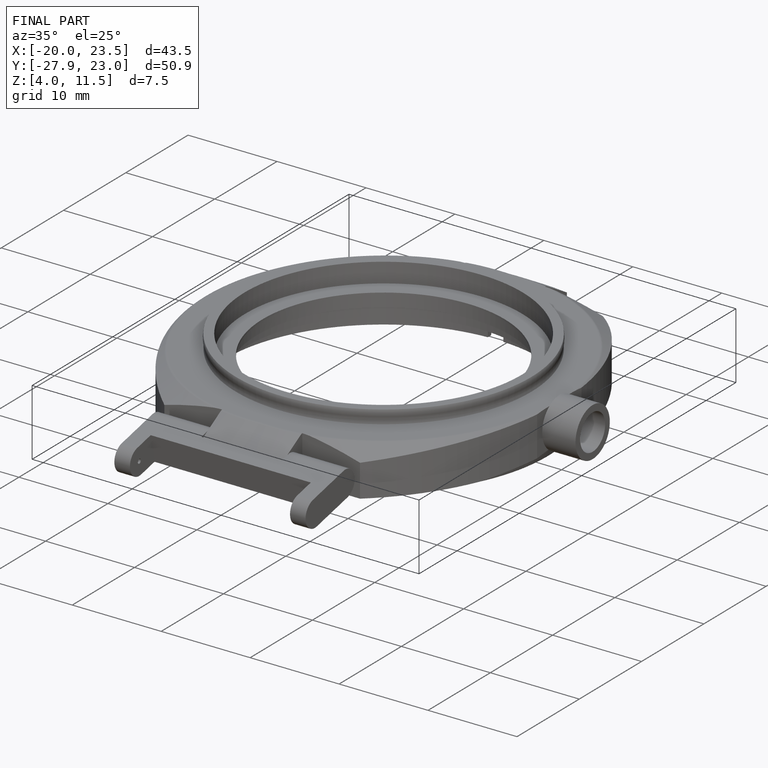
[diagram: finished part — iso view with bounding-box wireframe]
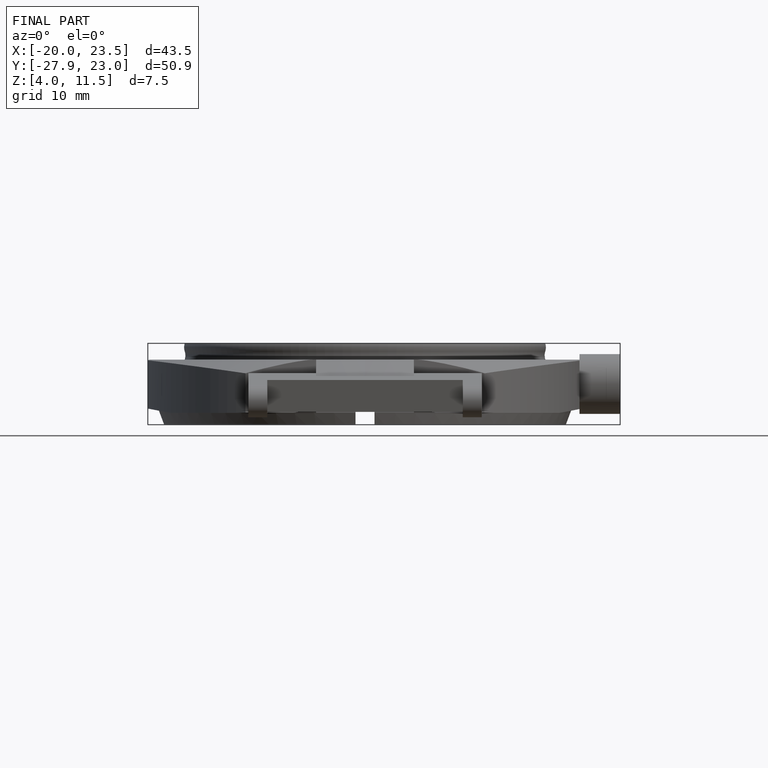
[diagram: finished part — front view with bounding-box wireframe]
